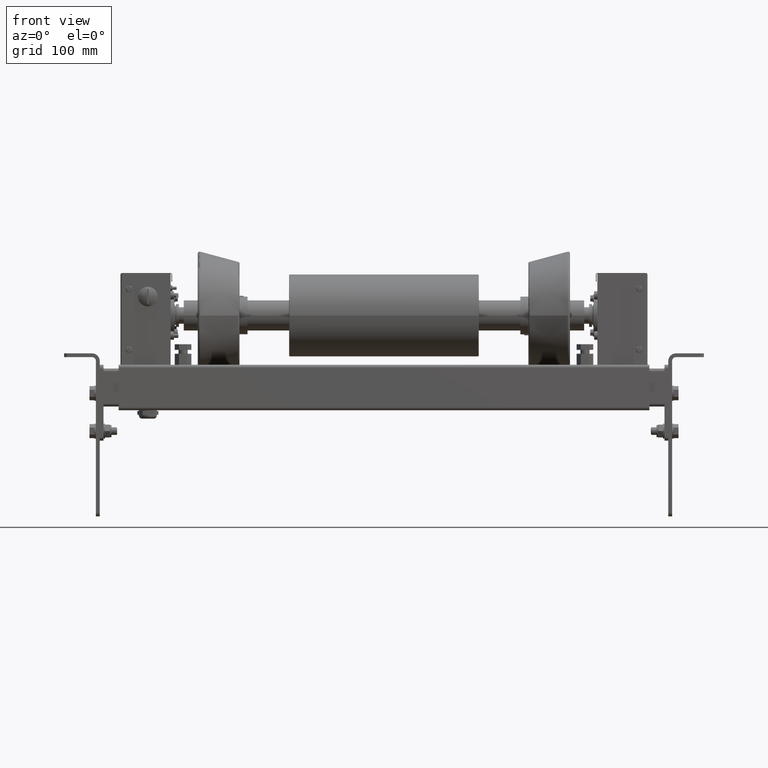
[diagram: clean part render]
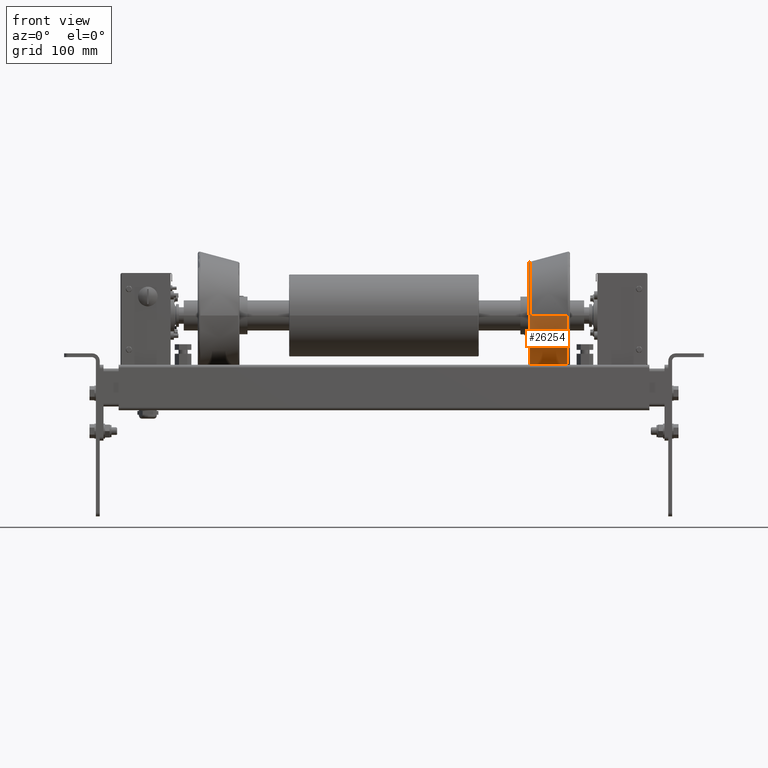
[diagram: same view with one face highlighted and labeled with its STEP entity id]
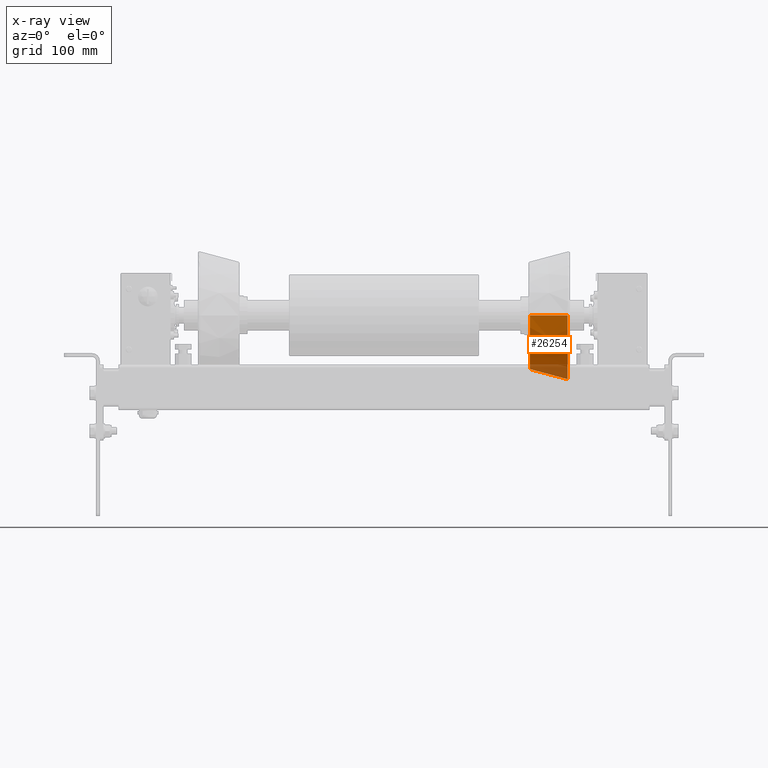
[diagram: x-ray of the same camera — body ghosted, the highlighted face saturated]
A machine part, front view. The second image highlights one B-rep face of the part: STEP entity #26254.
The next image is the same camera in x-ray: the body ghosted, the highlighted face saturated — about 16% of this face is hidden behind the body in this view.
In plain terms, the highlighted conical surface has half-angle 15 deg.
Its self-contained STEP definition (entity closure, byte-faithful):
#26157=CARTESIAN_POINT('',(-25.647047612756232,-6.250000000000000,-70.759291512063584));
#26158=VERTEX_POINT('',#26157);
#26168=CARTESIAN_POINT('',(-25.647047612756236,-77.009291512063584,-8.665514E-015));
#26169=VERTEX_POINT('',#26168);
#26170=CARTESIAN_POINT('',(-25.647047612756232,-6.250000000000000,0.0));
#26171=DIRECTION('',(-1.0,0.0,0.0));
#26172=DIRECTION('',(0.0,-1.0,0.0));
#26173=AXIS2_PLACEMENT_3D('',#26170,#26171,#26172);
#26174=CIRCLE('',#26173,70.759291512063584);
#26175=EDGE_CURVE('',#26158,#26169,#26174,.T.);
#26205=CARTESIAN_POINT('',(7.105427E-014,-6.250000000000000,0.0));
#26206=DIRECTION('',(1.0,0.0,0.0));
#26207=DIRECTION('',(0.0,1.0,0.0));
#26208=AXIS2_PLACEMENT_3D('',#26205,#26206,#26207);
#26209=CONICAL_SURFACE('',#26208,77.631397208144165,14.999999999999964);
#26210=CARTESIAN_POINT('',(24.352952387243700,77.906751133619665,0.0));
#26211=VERTEX_POINT('',#26210);
#26212=CARTESIAN_POINT('',(-25.647047612756232,64.509291512063584,0.0));
#26213=VERTEX_POINT('',#26212);
#26214=CARTESIAN_POINT('',(24.352952387243700,77.906751133619665,0.0));
#26215=DIRECTION('',(-0.965925826289069,-0.258819045102520,0.0));
#26216=VECTOR('',#26215,51.763809020504063);
#26217=LINE('',#26214,#26216);
#26218=EDGE_CURVE('',#26211,#26213,#26217,.T.);
#26219=ORIENTED_EDGE('',*,*,#26218,.F.);
#26220=CARTESIAN_POINT('',(24.352952387243704,-6.250000000000000,-84.156751133619665));
#26221=VERTEX_POINT('',#26220);
#26222=CARTESIAN_POINT('',(24.352952387243700,-6.250000000000000,0.0));
#26223=DIRECTION('',(1.0,0.0,0.0));
#26224=DIRECTION('',(0.0,-1.0,0.0));
#26225=AXIS2_PLACEMENT_3D('',#26222,#26223,#26224);
#26226=CIRCLE('',#26225,84.156751133619665);
#26227=EDGE_CURVE('',#26221,#26211,#26226,.T.);
#26228=ORIENTED_EDGE('',*,*,#26227,.F.);
#26229=CARTESIAN_POINT('',(24.352952387243707,-90.406751133619665,-1.030623E-014));
#26230=VERTEX_POINT('',#26229);
#26231=CARTESIAN_POINT('',(24.352952387243700,-6.250000000000000,0.0));
#26232=DIRECTION('',(1.0,0.0,0.0));
#26233=DIRECTION('',(0.0,-1.0,0.0));
#26234=AXIS2_PLACEMENT_3D('',#26231,#26232,#26233);
#26235=CIRCLE('',#26234,84.156751133619665);
#26236=EDGE_CURVE('',#26230,#26221,#26235,.T.);
#26237=ORIENTED_EDGE('',*,*,#26236,.F.);
#26238=CARTESIAN_POINT('',(24.352952387243707,-90.406751133619665,-1.030623E-014));
#26239=DIRECTION('',(-0.965925826289068,0.258819045102520,3.169619E-017));
#26240=VECTOR('',#26239,51.763809020504084);
#26241=LINE('',#26238,#26240);
#26242=EDGE_CURVE('',#26230,#26169,#26241,.T.);
#26243=ORIENTED_EDGE('',*,*,#26242,.T.);
#26244=ORIENTED_EDGE('',*,*,#26175,.F.);
#26245=CARTESIAN_POINT('',(-25.647047612756232,-6.250000000000000,0.0));
#26246=DIRECTION('',(-1.0,0.0,0.0));
#26247=DIRECTION('',(0.0,-1.0,0.0));
#26248=AXIS2_PLACEMENT_3D('',#26245,#26246,#26247);
#26249=CIRCLE('',#26248,70.759291512063584);
#26250=EDGE_CURVE('',#26213,#26158,#26249,.T.);
#26251=ORIENTED_EDGE('',*,*,#26250,.F.);
#26252=EDGE_LOOP('',(#26219,#26228,#26237,#26243,#26244,#26251));
#26253=FACE_OUTER_BOUND('',#26252,.T.);
#26254=ADVANCED_FACE('',(#26253),#26209,.T.);